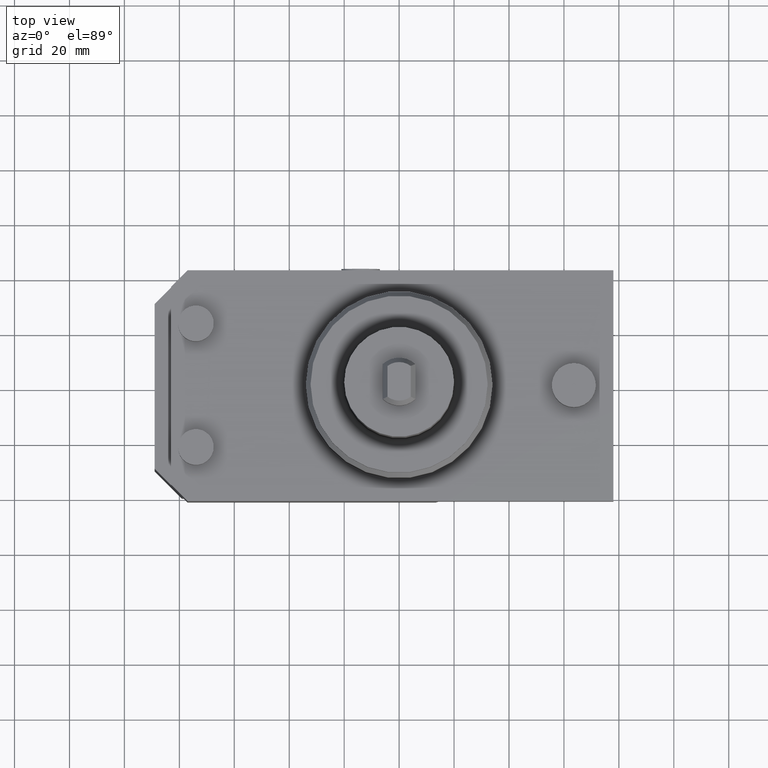
[diagram: clean part render]
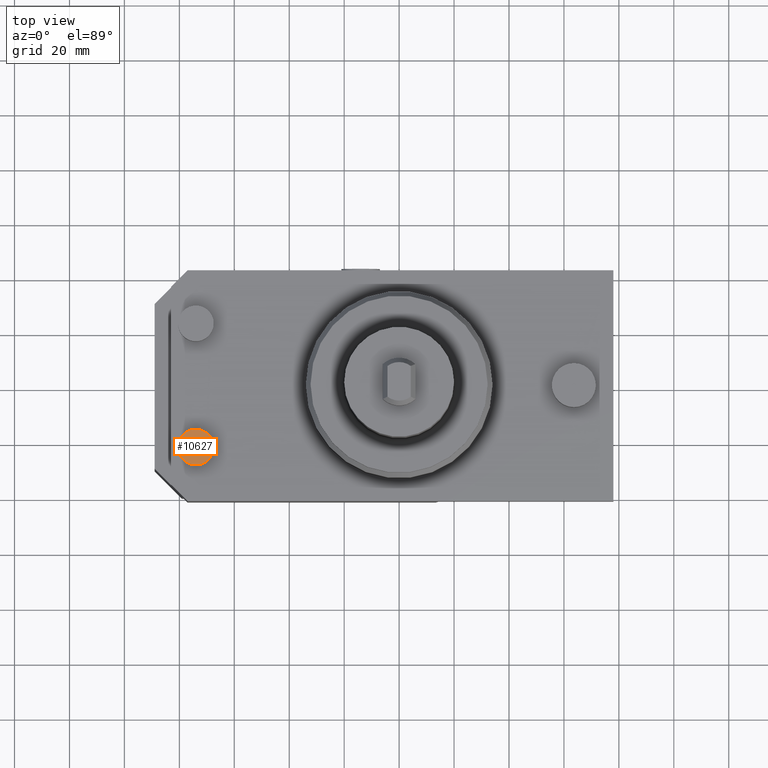
[diagram: same view with one face highlighted and labeled with its STEP entity id]
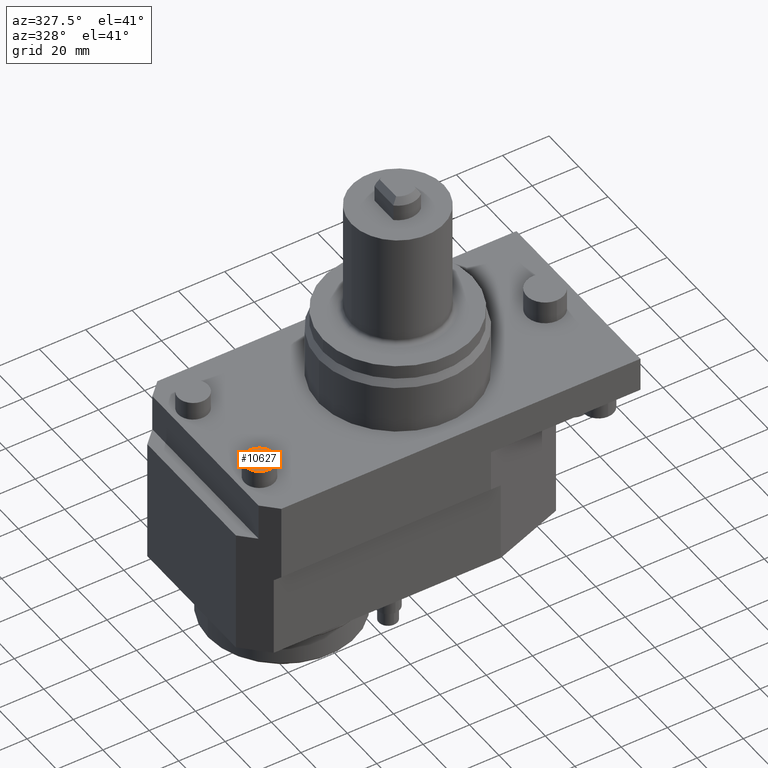
[diagram: same view with one face highlighted and labeled with its STEP entity id]
A machine part, top view. The second image highlights one B-rep face of the part: STEP entity #10627.
A second angle (auxiliary view) of the same face is appended — the face is thin or edge-on in the first view.
In plain terms, the highlighted planar face has unit normal (0, 0, -1).
Its self-contained STEP definition (entity closure, byte-faithful):
#8055 = CYLINDRICAL_SURFACE('',#8056,6.5);
#8056 = AXIS2_PLACEMENT_3D('',#8057,#8058,#8059);
#8057 = CARTESIAN_POINT('',(-74.,-22.5,7.95));
#8058 = DIRECTION('',(2.124686515435E-017,0.E+000,-1.));
#8059 = DIRECTION('',(-1.,0.E+000,-2.124686515435E-017));
#10578 = EDGE_CURVE('',#10579,#10579,#10581,.T.);
#10579 = VERTEX_POINT('',#10580);
#10580 = CARTESIAN_POINT('',(-67.5,-22.5,7.95));
#10581 = SURFACE_CURVE('',#10582,(#10587,#10593),.PCURVE_S1.);
#10582 = CIRCLE('',#10583,6.5);
#10583 = AXIS2_PLACEMENT_3D('',#10584,#10585,#10586);
#10584 = CARTESIAN_POINT('',(-74.,-22.5,7.95));
#10585 = DIRECTION('',(2.125473979446E-017,0.E+000,-1.));
#10586 = DIRECTION('',(1.,0.E+000,2.125473979446E-017));
#10587 = PCURVE('',#8055,#10588);
#10588 = DEFINITIONAL_REPRESENTATION('',(#10589),#10592);
#10589 = B_SPLINE_CURVE_WITH_KNOTS('',1,(#10590,#10591),.UNSPECIFIED.,
  .F.,.F.,(2,2),(0.E+000,6.28318530718),.PIECEWISE_BEZIER_KNOTS.);
#10590 = CARTESIAN_POINT('',(3.14159265359,0.E+000));
#10591 = CARTESIAN_POINT('',(9.424777960769,0.E+000));
#10592 = ( GEOMETRIC_REPRESENTATION_CONTEXT(2) 
PARAMETRIC_REPRESENTATION_CONTEXT() REPRESENTATION_CONTEXT('2D SPACE',''
  ) );
#10593 = PCURVE('',#10594,#10599);
#10594 = PLANE('',#10595);
#10595 = AXIS2_PLACEMENT_3D('',#10596,#10597,#10598);
#10596 = CARTESIAN_POINT('',(-74.,-22.5,7.95));
#10597 = DIRECTION('',(2.125473979446E-017,0.E+000,-1.));
#10598 = DIRECTION('',(-1.,0.E+000,-2.125473979446E-017));
#10599 = DEFINITIONAL_REPRESENTATION('',(#10600),#10604);
#10600 = CIRCLE('',#10601,6.5);
#10601 = AXIS2_PLACEMENT_2D('',#10602,#10603);
#10602 = CARTESIAN_POINT('',(0.E+000,0.E+000));
#10603 = DIRECTION('',(-1.,0.E+000));
#10604 = ( GEOMETRIC_REPRESENTATION_CONTEXT(2) 
PARAMETRIC_REPRESENTATION_CONTEXT() REPRESENTATION_CONTEXT('2D SPACE',''
  ) );
#10627 = ADVANCED_FACE('',(#10628),#10594,.F.);
#10628 = FACE_BOUND('',#10629,.T.);
#10629 = EDGE_LOOP('',(#10630));
#10630 = ORIENTED_EDGE('',*,*,#10578,.F.);